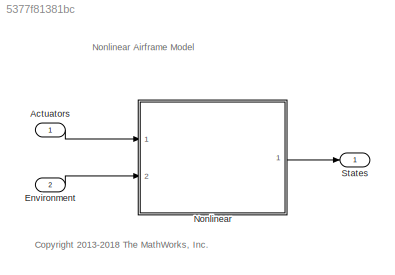
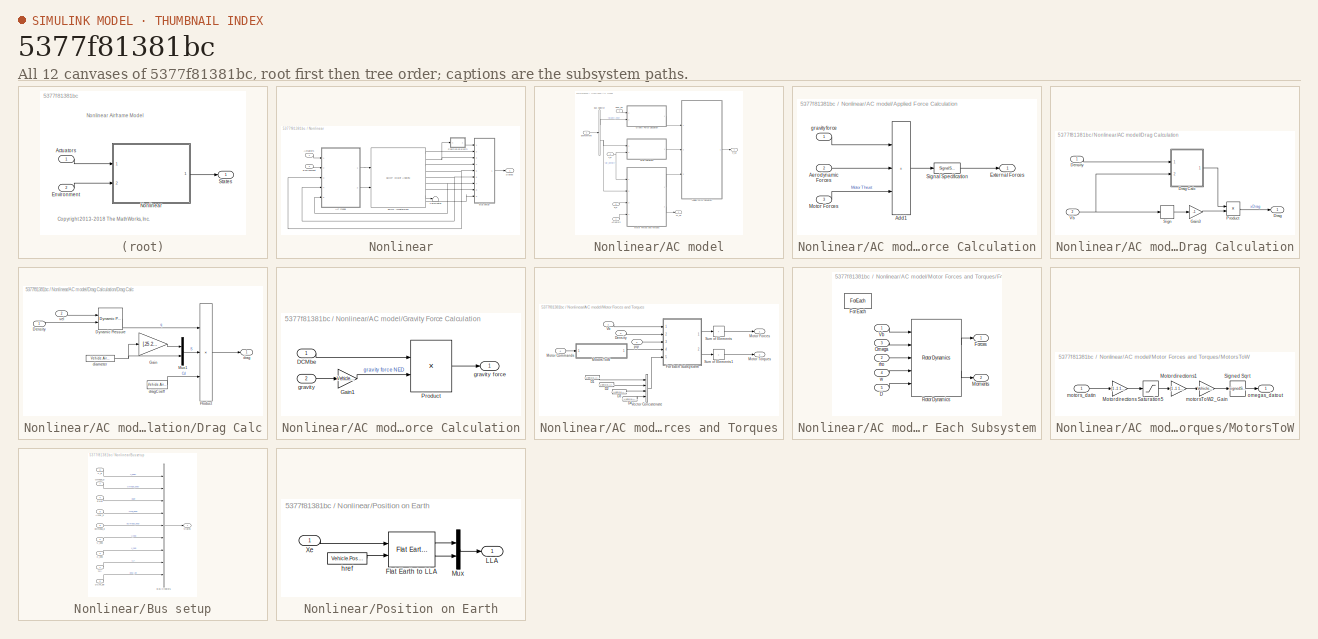
[diagram: thumbnail index - all 12 canvases of the model, root first then tree order]
MODEL slx_5377f81381bc
KIND model
CONFIG AbsTol = auto
CONFIG EnableMultiTasking = on
CONFIG FixedStep = Ts
CONFIG MaxStep = auto
CONFIG MinStep = auto
CONFIG RelTol = 1e-3
CONFIG SampleTimeConstraint = Unconstrained
CONFIG SolverName = ode3
CONFIG StartTime = 0
CONFIG StopTime = 10.0
BLOCK [Inport] Actuators
  OutDataTypeStr = single
  PortDimensions = [1 4]
  Unit = rpm
BLOCK [Inport] Environment
  BusOutputAsStruct = on
  OutDataTypeStr = Bus: EnvironmentBus
  Port = 2
BLOCK [SubSystem] Nonlinear
  Ports = [2, 1]
  RequestExecContextInheritance = off
  TreatAsAtomicUnit = on
BLOCK [Reference] Nonlinear/6DOF (Quaternion)  REF=shared6dof/6DOF (Euler Angles)
  Ports = [2, 9]
  SourceBlock = shared6dof/6DOF (Euler Angles)
  SourceProductBaseCode = AE,PW,DR,MT,UV,VE
  SourceType = 6DOF EoM (Body Axis)
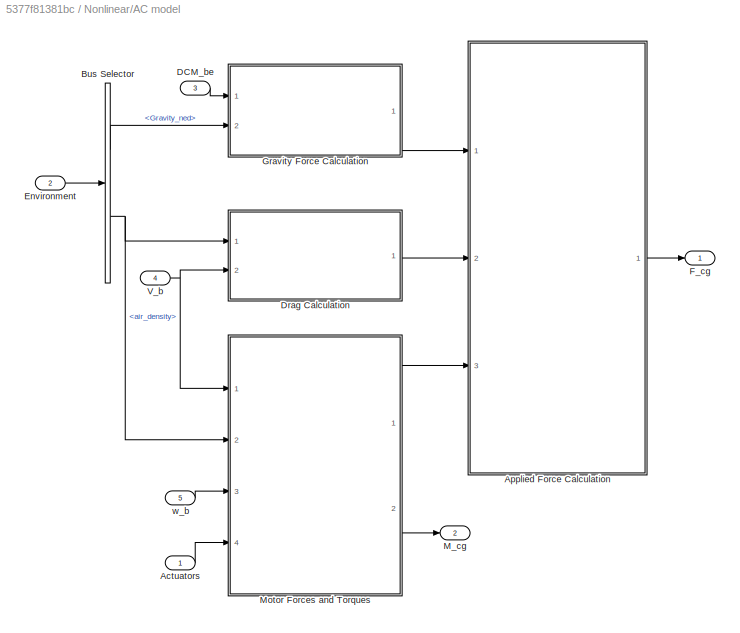
BLOCK [SubSystem] Nonlinear/AC model
  Ports = [5, 2]
  RequestExecContextInheritance = off
BLOCK [Inport] Nonlinear/AC model/Actuators
BLOCK [SubSystem] Nonlinear/AC model/Applied Force Calculation
  Ports = [3, 1]
  RequestExecContextInheritance = off
BLOCK [Sum] Nonlinear/AC model/Applied Force Calculation/Add1
  IconShape = rectangular
  Inputs = +++
  Ports = [3, 1]
BLOCK [Inport] Nonlinear/AC model/Applied Force Calculation/Aerodynamic Forces
  Port = 2
  Unit = N
BLOCK [Outport] Nonlinear/AC model/Applied Force Calculation/External Forces
  Unit = N
  VectorParamsAs1DForOutWhenUnconnected = off
BLOCK [Inport] Nonlinear/AC model/Applied Force Calculation/Motor Forces
  Port = 3
  Unit = N
BLOCK [SignalSpecification] Nonlinear/AC model/Applied Force Calculation/Signal Specification
  Dimensions = 3
BLOCK [Inport] Nonlinear/AC model/Applied Force Calculation/gravity force
  Unit = N
BLOCK [BusSelector] Nonlinear/AC model/Bus Selector
  OutputSignals = Gravity_ned,AtmosphereBus.air_density
  Ports = [1, 2]
BLOCK [Inport] Nonlinear/AC model/DCM_be
  Port = 3
BLOCK [SubSystem] Nonlinear/AC model/Drag Calculation
  Ports = [2, 1]
  RequestExecContextInheritance = off
BLOCK [Inport] Nonlinear/AC model/Drag Calculation/Density
  Unit = kg/m^3
BLOCK [Outport] Nonlinear/AC model/Drag Calculation/Drag
  Unit = N
  VectorParamsAs1DForOutWhenUnconnected = off
BLOCK [SubSystem] Nonlinear/AC model/Drag Calculation/Drag Calc
  Ports = [2, 1]
  RequestExecContextInheritance = off
BLOCK [Inport] Nonlinear/AC model/Drag Calculation/Drag Calc/Density
  Unit = kg/m^3
BLOCK [Reference] Nonlinear/AC model/Drag Calculation/Drag Calc/Dynamic Pressure  REF=aerolibasang/Dynamic Pressure
  Ports = [2, 1]
  SourceBlock = aerolibasang/Dynamic Pressure
  SourceProductBaseCode = AE
  SourceType = Dynamic Pressure
BLOCK [Gain] Nonlinear/AC model/Drag Calculation/Drag Calc/Gain
  Gain = [.25 .25]
BLOCK [Mux] Nonlinear/AC model/Drag Calculation/Drag Calc/Mux1
  DisplayOption = bar
  Inputs = 2
  Ports = [2, 1]
BLOCK [Product] Nonlinear/AC model/Drag Calculation/Drag Calc/Product
  Inputs = 3
  Ports = [3, 1]
  RndMeth = Zero
BLOCK [Constant] Nonlinear/AC model/Drag Calculation/Drag Calc/diameter
  SampleTime = 0
  Value = Vehicle.Airframe.diameter
BLOCK [Outport] Nonlinear/AC model/Drag Calculation/Drag Calc/drag
  Unit = N
  VectorParamsAs1DForOutWhenUnconnected = off
BLOCK [Constant] Nonlinear/AC model/Drag Calculation/Drag Calc/dragCoeff
  SampleTime = 0
  Value = Vehicle.Airframe.Cdx
BLOCK [Inport] Nonlinear/AC model/Drag Calculation/Drag Calc/vel
  Port = 2
  Unit = m/s
BLOCK [Gain] Nonlinear/AC model/Drag Calculation/Gain3
  Gain = -1
BLOCK [Product] Nonlinear/AC model/Drag Calculation/Product
  Ports = [2, 1]
  RndMeth = Zero
BLOCK [Signum] Nonlinear/AC model/Drag Calculation/Sign
  ZeroCross = off
BLOCK [Inport] Nonlinear/AC model/Drag Calculation/Vb
  Port = 2
  Unit = m/second
BLOCK [Inport] Nonlinear/AC model/Environment
  Port = 2
BLOCK [Outport] Nonlinear/AC model/F_cg
  Unit = N
  VectorParamsAs1DForOutWhenUnconnected = off
BLOCK [SubSystem] Nonlinear/AC model/Gravity Force Calculation
  Ports = [2, 1]
  RequestExecContextInheritance = off
BLOCK [Inport] Nonlinear/AC model/Gravity Force Calculation/DCMbe
BLOCK [Gain] Nonlinear/AC model/Gravity Force Calculation/Gain1
  Gain = Vehicle.Airframe.mass
BLOCK [Product] Nonlinear/AC model/Gravity Force Calculation/Product
  Multiplication = Matrix(*)
  Ports = [2, 1]
BLOCK [Inport] Nonlinear/AC model/Gravity Force Calculation/gravity
  Port = 2
  Unit = m/s^2
BLOCK [Outport] Nonlinear/AC model/Gravity Force Calculation/gravity force
  Unit = N
  VectorParamsAs1DForOutWhenUnconnected = off
BLOCK [Outport] Nonlinear/AC model/M_cg
  Port = 2
  Unit = N*m
  VectorParamsAs1DForOutWhenUnconnected = off
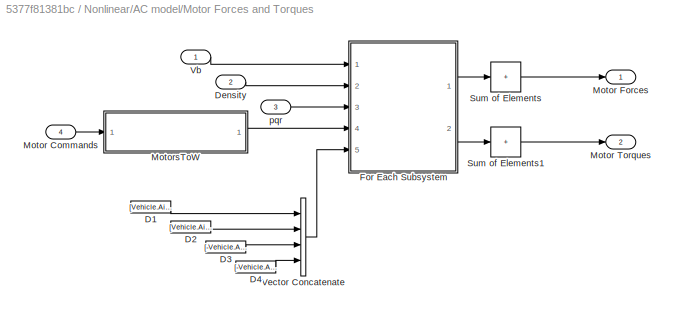
BLOCK [SubSystem] Nonlinear/AC model/Motor Forces and Torques
  Ports = [4, 2]
  RequestExecContextInheritance = off
BLOCK [Constant] Nonlinear/AC model/Motor Forces and Torques/D1
  Value = [Vehicle.Airframe.xy -Vehicle.Airframe.xy Vehicle.Airframe.h]
BLOCK [Constant] Nonlinear/AC model/Motor Forces and Torques/D2
  Value = [Vehicle.Airframe.xy Vehicle.Airframe.xy Vehicle.Airframe.h]
BLOCK [Constant] Nonlinear/AC model/Motor Forces and Torques/D3
  Value = [-Vehicle.Airframe.xy Vehicle.Airframe.xy Vehicle.Airframe.h]
BLOCK [Constant] Nonlinear/AC model/Motor Forces and Torques/D4
  Value = [-Vehicle.Airframe.xy -Vehicle.Airframe.xy Vehicle.Airframe.h]
BLOCK [Inport] Nonlinear/AC model/Motor Forces and Torques/Density
  Port = 2
BLOCK [SubSystem] Nonlinear/AC model/Motor Forces and Torques/For Each Subsystem
  Ports = [5, 2]
  RequestExecContextInheritance = off
  TreatAsAtomicUnit = on
BLOCK [Inport] Nonlinear/AC model/Motor Forces and Torques/For Each Subsystem/D
  Partition = on
  PartitionDimension = 2
  PartitionOffset = 0
  PartitionWidth = 1
  Port = 5
BLOCK [ForEach] Nonlinear/AC model/Motor Forces and Torques/For Each Subsystem/For Each
  DisableCoverage = on
  Ports = []
BLOCK [Outport] Nonlinear/AC model/Motor Forces and Torques/For Each Subsystem/Forces
  ConcatenationDimension = 2
  VectorParamsAs1DForOutWhenUnconnected = off
BLOCK [Outport] Nonlinear/AC model/Motor Forces and Torques/For Each Subsystem/Moments
  ConcatenationDimension = 2
  Port = 2
  VectorParamsAs1DForOutWhenUnconnected = off
BLOCK [Inport] Nonlinear/AC model/Motor Forces and Torques/For Each Subsystem/Omega
  Port = 3
BLOCK [Reference] Nonlinear/AC model/Motor Forces and Torques/For Each Subsystem/Rotor Dynamics  REF=dynamicsLibrary/Rotor Dynamics
  Ports = [5, 2]
  SourceBlock = dynamicsLibrary/Rotor Dynamics
BLOCK [Inport] Nonlinear/AC model/Motor Forces and Torques/For Each Subsystem/Vb
  PortDimensions = 3
BLOCK [Inport] Nonlinear/AC model/Motor Forces and Torques/For Each Subsystem/rho
  Port = 2
  PortDimensions = 1
BLOCK [Inport] Nonlinear/AC model/Motor Forces and Torques/For Each Subsystem/w
  Partition = on
  PartitionDimension = 2
  PartitionOffset = 0
  PartitionWidth = 1
  Port = 4
BLOCK [Inport] Nonlinear/AC model/Motor Forces and Torques/Motor Commands
  Port = 4
BLOCK [Outport] Nonlinear/AC model/Motor Forces and Torques/Motor Forces
  Unit = N
  VectorParamsAs1DForOutWhenUnconnected = off
BLOCK [Outport] Nonlinear/AC model/Motor Forces and Torques/Motor Torques
  Port = 2
  Unit = N*m
  VectorParamsAs1DForOutWhenUnconnected = off
BLOCK [SubSystem] Nonlinear/AC model/Motor Forces and Torques/MotorsToW
  Ports = [1, 1]
  RequestExecContextInheritance = off
BLOCK [Gain] Nonlinear/AC model/Motor Forces and Torques/MotorsToW/Motordirections
  Gain = [1 -1 1 -1]
  OutDataTypeStr = Inherit: Inherit via back propagation
  ParamDataTypeStr = single
  SaturateOnIntegerOverflow = on
BLOCK [Gain] Nonlinear/AC model/Motor Forces and Torques/MotorsToW/Motordirections1
  Gain = [1 -1 1 -1]
  OutDataTypeStr = Inherit: Inherit via back propagation
  ParamDataTypeStr = single
  SaturateOnIntegerOverflow = on
BLOCK [Saturate] Nonlinear/AC model/Motor Forces and Torques/MotorsToW/Saturation5
  LowerLimit = Vehicle.Motor.minLimit
  OutDataTypeStr = Inherit: Inherit via back propagation
  UpperLimit = Vehicle.Motor.maxLimit
BLOCK [Sqrt] Nonlinear/AC model/Motor Forces and Torques/MotorsToW/Signed Sqrt
  Operator = signedSqrt
  OutDataTypeStr = Inherit: Inherit via back propagation
BLOCK [Gain] Nonlinear/AC model/Motor Forces and Torques/MotorsToW/motorsToW2_Gain
  Gain = Vehicle.Motor.commandToW2Gain
  OutDataTypeStr = Inherit: Inherit via back propagation
  ParamDataTypeStr = single
  SaturateOnIntegerOverflow = on
BLOCK [Inport] Nonlinear/AC model/Motor Forces and Torques/MotorsToW/motors_datin
BLOCK [Outport] Nonlinear/AC model/Motor Forces and Torques/MotorsToW/omegas_datout
  VectorParamsAs1DForOutWhenUnconnected = off
BLOCK [Sum] Nonlinear/AC model/Motor Forces and Torques/Sum of Elements
  CollapseDim = 2
  CollapseMode = Specified dimension
  IconShape = rectangular
  Inputs = +
  Ports = [1, 1]
BLOCK [Sum] Nonlinear/AC model/Motor Forces and Torques/Sum of Elements1
  CollapseDim = 2
  CollapseMode = Specified dimension
  IconShape = rectangular
  Inputs = +
  Ports = [1, 1]
BLOCK [Inport] Nonlinear/AC model/Motor Forces and Torques/Vb
BLOCK [Concatenate] Nonlinear/AC model/Motor Forces and Torques/Vector Concatenate
  ConcatenateDimension = 2
  Mode = Multidimensional array
  NumInputs = 4
  Ports = [4, 1]
BLOCK [Inport] Nonlinear/AC model/Motor Forces and Torques/pqr
  Port = 3
BLOCK [Inport] Nonlinear/AC model/V_b
  Port = 4
  Unit = m/s
BLOCK [Inport] Nonlinear/AC model/w_b
  Port = 5
  Unit = rad/s
BLOCK [Inport] Nonlinear/Actuators
BLOCK [SubSystem] Nonlinear/Bus setup
  Ports = [9, 1]
  RequestExecContextInheritance = off
BLOCK [Inport] Nonlinear/Bus setup/Accel_b
  Port = 9
  PortDimensions = 3
  Unit = m/s^2
BLOCK [BusCreator] Nonlinear/Bus setup/Bus Creator5
  DisplayOption = bar
  InheritFromInputs = on
  Inputs = 9
  NonVirtualBus = on
  OutDataTypeStr = Bus: StatesBus
  Ports = [9, 1]
BLOCK [Inport] Nonlinear/Bus setup/DCM_be
  Port = 5
  PortDimensions = [3 3]
BLOCK [Inport] Nonlinear/Bus setup/Euler
  Port = 4
  PortDimensions = 3
  Unit = rad
BLOCK [Inport] Nonlinear/Bus setup/LLA
  PortDimensions = 3
BLOCK [Inport] Nonlinear/Bus setup/Omega_b
  Port = 7
  PortDimensions = 3
  Unit = rad/s
BLOCK [Outport] Nonlinear/Bus setup/States
  VectorParamsAs1DForOutWhenUnconnected = off
BLOCK [Inport] Nonlinear/Bus setup/V_b
  Port = 6
  PortDimensions = 3
  Unit = m/s
BLOCK [Inport] Nonlinear/Bus setup/V_ned
  Port = 2
  PortDimensions = 3
  Unit = m/second
BLOCK [Inport] Nonlinear/Bus setup/X_ned
  Port = 3
  PortDimensions = 3
  Unit = m
BLOCK [Inport] Nonlinear/Bus setup/dOmega_b
  Port = 8
  PortDimensions = 3
  Unit = rad/s^2
BLOCK [Inport] Nonlinear/Environment
  Port = 2
BLOCK [SubSystem] Nonlinear/Position on Earth
  NameLocation = top
  Ports = [1, 1]
  Priority = 1
  RequestExecContextInheritance = off
  TreatAsAtomicUnit = on
BLOCK [Reference] Nonlinear/Position on Earth/Flat Earth to LLA  REF=aerolibtransform2/Flat Earth to LLA
  Ports = [2, 2]
  SourceBlock = aerolibtransform2/Flat Earth to LLA
  SourceProductBaseCode = AE
  SourceType = Flat Earth to LLA
BLOCK [Outport] Nonlinear/Position on Earth/LLA
  VectorParamsAs1DForOutWhenUnconnected = off
BLOCK [Mux] Nonlinear/Position on Earth/Mux
  DisplayOption = bar
  Inputs = 2
  Ports = [2, 1]
BLOCK [Inport] Nonlinear/Position on Earth/Xe
  Unit = m
BLOCK [Constant] Nonlinear/Position on Earth/href
  Value = Vehicle.PositionOnEarth.href
BLOCK [Outport] Nonlinear/States
  VectorParamsAs1DForOutWhenUnconnected = off
BLOCK [Terminator] Nonlinear/Terminator
BLOCK [Outport] States
  BusOutputAsStruct = on
  OutDataTypeStr = Bus: StatesBus
  VectorParamsAs1DForOutWhenUnconnected = off
ANNOTATION (root): <copyright redacted>
ANNOTATION (root): Nonlinear Airframe Model
LINE Actuators:1 -> Nonlinear:1
LINE Environment:1 -> Nonlinear:2
LINE Nonlinear/6DOF (Quaternion):1 -> Nonlinear/Bus setup:2
NET Nonlinear/6DOF (Quaternion):2 -> Nonlinear/Bus setup:3, Nonlinear/Position on Earth:1
LINE Nonlinear/6DOF (Quaternion):3 -> Nonlinear/Bus setup:4
NET Nonlinear/6DOF (Quaternion):4 -> Nonlinear/AC model:3, Nonlinear/Bus setup:5
NET Nonlinear/6DOF (Quaternion):5 -> Nonlinear/AC model:4, Nonlinear/Bus setup:6
NET Nonlinear/6DOF (Quaternion):6 -> Nonlinear/AC model:5, Nonlinear/Bus setup:7
LINE Nonlinear/6DOF (Quaternion):7 -> Nonlinear/Bus setup:8
LINE Nonlinear/6DOF (Quaternion):8 -> Nonlinear/Terminator:1
LINE Nonlinear/6DOF (Quaternion):9 -> Nonlinear/Bus setup:9
LINE Nonlinear/AC model/Actuators:1 -> Nonlinear/AC model/Motor Forces and Torques:4
LINE Nonlinear/AC model/Applied Force Calculation/Add1:1 -> Nonlinear/AC model/Applied Force Calculation/Signal Specification:1
LINE Nonlinear/AC model/Applied Force Calculation/Aerodynamic Forces:1 -> Nonlinear/AC model/Applied Force Calculation/Add1:2
LINE Nonlinear/AC model/Applied Force Calculation/Motor Forces:1 -> Nonlinear/AC model/Applied Force Calculation/Add1:3
LINE Nonlinear/AC model/Applied Force Calculation/Signal Specification:1 -> Nonlinear/AC model/Applied Force Calculation/External Forces:1
LINE Nonlinear/AC model/Applied Force Calculation/gravity force:1 -> Nonlinear/AC model/Applied Force Calculation/Add1:1
LINE Nonlinear/AC model/Applied Force Calculation:1 -> Nonlinear/AC model/F_cg:1
LINE Nonlinear/AC model/Bus Selector:1 -> Nonlinear/AC model/Gravity Force Calculation:2
NET Nonlinear/AC model/Bus Selector:2 -> Nonlinear/AC model/Drag Calculation:1, Nonlinear/AC model/Motor Forces and Torques:2
LINE Nonlinear/AC model/DCM_be:1 -> Nonlinear/AC model/Gravity Force Calculation:1
LINE Nonlinear/AC model/Drag Calculation/Density:1 -> Nonlinear/AC model/Drag Calculation/Drag Calc:1
LINE Nonlinear/AC model/Drag Calculation/Drag Calc/Density:1 -> Nonlinear/AC model/Drag Calculation/Drag Calc/Dynamic Pressure:2
LINE Nonlinear/AC model/Drag Calculation/Drag Calc/Dynamic Pressure:1 -> Nonlinear/AC model/Drag Calculation/Drag Calc/Product:1
LINE Nonlinear/AC model/Drag Calculation/Drag Calc/Gain:1 -> Nonlinear/AC model/Drag Calculation/Drag Calc/Mux1:1
LINE Nonlinear/AC model/Drag Calculation/Drag Calc/Mux1:1 -> Nonlinear/AC model/Drag Calculation/Drag Calc/Product:2
LINE Nonlinear/AC model/Drag Calculation/Drag Calc/Product:1 -> Nonlinear/AC model/Drag Calculation/Drag Calc/drag:1
NET Nonlinear/AC model/Drag Calculation/Drag Calc/diameter:1 -> Nonlinear/AC model/Drag Calculation/Drag Calc/Gain:1, Nonlinear/AC model/Drag Calculation/Drag Calc/Mux1:2
LINE Nonlinear/AC model/Drag Calculation/Drag Calc/dragCoeff:1 -> Nonlinear/AC model/Drag Calculation/Drag Calc/Product:3
LINE Nonlinear/AC model/Drag Calculation/Drag Calc/vel:1 -> Nonlinear/AC model/Drag Calculation/Drag Calc/Dynamic Pressure:1
LINE Nonlinear/AC model/Drag Calculation/Drag Calc:1 -> Nonlinear/AC model/Drag Calculation/Product:1
LINE Nonlinear/AC model/Drag Calculation/Gain3:1 -> Nonlinear/AC model/Drag Calculation/Product:2
LINE Nonlinear/AC model/Drag Calculation/Product:1 -> Nonlinear/AC model/Drag Calculation/Drag:1
LINE Nonlinear/AC model/Drag Calculation/Sign:1 -> Nonlinear/AC model/Drag Calculation/Gain3:1
NET Nonlinear/AC model/Drag Calculation/Vb:1 -> Nonlinear/AC model/Drag Calculation/Drag Calc:2, Nonlinear/AC model/Drag Calculation/Sign:1
LINE Nonlinear/AC model/Drag Calculation:1 -> Nonlinear/AC model/Applied Force Calculation:2
LINE Nonlinear/AC model/Environment:1 -> Nonlinear/AC model/Bus Selector:1
LINE Nonlinear/AC model/Gravity Force Calculation/DCMbe:1 -> Nonlinear/AC model/Gravity Force Calculation/Product:1
LINE Nonlinear/AC model/Gravity Force Calculation/Gain1:1 -> Nonlinear/AC model/Gravity Force Calculation/Product:2
LINE Nonlinear/AC model/Gravity Force Calculation/Product:1 -> Nonlinear/AC model/Gravity Force Calculation/gravity force:1
LINE Nonlinear/AC model/Gravity Force Calculation/gravity:1 -> Nonlinear/AC model/Gravity Force Calculation/Gain1:1
LINE Nonlinear/AC model/Gravity Force Calculation:1 -> Nonlinear/AC model/Applied Force Calculation:1
LINE Nonlinear/AC model/Motor Forces and Torques/D1:1 -> Nonlinear/AC model/Motor Forces and Torques/Vector Concatenate:1
LINE Nonlinear/AC model/Motor Forces and Torques/D2:1 -> Nonlinear/AC model/Motor Forces and Torques/Vector Concatenate:2
LINE Nonlinear/AC model/Motor Forces and Torques/D3:1 -> Nonlinear/AC model/Motor Forces and Torques/Vector Concatenate:3
LINE Nonlinear/AC model/Motor Forces and Torques/D4:1 -> Nonlinear/AC model/Motor Forces and Torques/Vector Concatenate:4
LINE Nonlinear/AC model/Motor Forces and Torques/Density:1 -> Nonlinear/AC model/Motor Forces and Torques/For Each Subsystem:2
LINE Nonlinear/AC model/Motor Forces and Torques/For Each Subsystem/D:1 -> Nonlinear/AC model/Motor Forces and Torques/For Each Subsystem/Rotor Dynamics:5
LINE Nonlinear/AC model/Motor Forces and Torques/For Each Subsystem/Omega:1 -> Nonlinear/AC model/Motor Forces and Torques/For Each Subsystem/Rotor Dynamics:2
LINE Nonlinear/AC model/Motor Forces and Torques/For Each Subsystem/Rotor Dynamics:1 -> Nonlinear/AC model/Motor Forces and Torques/For Each Subsystem/Forces:1
LINE Nonlinear/AC model/Motor Forces and Torques/For Each Subsystem/Rotor Dynamics:2 -> Nonlinear/AC model/Motor Forces and Torques/For Each Subsystem/Moments:1
LINE Nonlinear/AC model/Motor Forces and Torques/For Each Subsystem/Vb:1 -> Nonlinear/AC model/Motor Forces and Torques/For Each Subsystem/Rotor Dynamics:1
LINE Nonlinear/AC model/Motor Forces and Torques/For Each Subsystem/rho:1 -> Nonlinear/AC model/Motor Forces and Torques/For Each Subsystem/Rotor Dynamics:3
LINE Nonlinear/AC model/Motor Forces and Torques/For Each Subsystem/w:1 -> Nonlinear/AC model/Motor Forces and Torques/For Each Subsystem/Rotor Dynamics:4
LINE Nonlinear/AC model/Motor Forces and Torques/For Each Subsystem:1 -> Nonlinear/AC model/Motor Forces and Torques/Sum of Elements:1
LINE Nonlinear/AC model/Motor Forces and Torques/For Each Subsystem:2 -> Nonlinear/AC model/Motor Forces and Torques/Sum of Elements1:1
LINE Nonlinear/AC model/Motor Forces and Torques/Motor Commands:1 -> Nonlinear/AC model/Motor Forces and Torques/MotorsToW:1
LINE Nonlinear/AC model/Motor Forces and Torques/MotorsToW/Motordirections1:1 -> Nonlinear/AC model/Motor Forces and Torques/MotorsToW/motorsToW2_Gain:1
LINE Nonlinear/AC model/Motor Forces and Torques/MotorsToW/Motordirections:1 -> Nonlinear/AC model/Motor Forces and Torques/MotorsToW/Saturation5:1
LINE Nonlinear/AC model/Motor Forces and Torques/MotorsToW/Saturation5:1 -> Nonlinear/AC model/Motor Forces and Torques/MotorsToW/Motordirections1:1
LINE Nonlinear/AC model/Motor Forces and Torques/MotorsToW/Signed Sqrt:1 -> Nonlinear/AC model/Motor Forces and Torques/MotorsToW/omegas_datout:1
LINE Nonlinear/AC model/Motor Forces and Torques/MotorsToW/motorsToW2_Gain:1 -> Nonlinear/AC model/Motor Forces and Torques/MotorsToW/Signed Sqrt:1
LINE Nonlinear/AC model/Motor Forces and Torques/MotorsToW/motors_datin:1 -> Nonlinear/AC model/Motor Forces and Torques/MotorsToW/Motordirections:1
LINE Nonlinear/AC model/Motor Forces and Torques/MotorsToW:1 -> Nonlinear/AC model/Motor Forces and Torques/For Each Subsystem:4
LINE Nonlinear/AC model/Motor Forces and Torques/Sum of Elements1:1 -> Nonlinear/AC model/Motor Forces and Torques/Motor Torques:1
LINE Nonlinear/AC model/Motor Forces and Torques/Sum of Elements:1 -> Nonlinear/AC model/Motor Forces and Torques/Motor Forces:1
LINE Nonlinear/AC model/Motor Forces and Torques/Vb:1 -> Nonlinear/AC model/Motor Forces and Torques/For Each Subsystem:1
LINE Nonlinear/AC model/Motor Forces and Torques/Vector Concatenate:1 -> Nonlinear/AC model/Motor Forces and Torques/For Each Subsystem:5
LINE Nonlinear/AC model/Motor Forces and Torques/pqr:1 -> Nonlinear/AC model/Motor Forces and Torques/For Each Subsystem:3
LINE Nonlinear/AC model/Motor Forces and Torques:1 -> Nonlinear/AC model/Applied Force Calculation:3
LINE Nonlinear/AC model/Motor Forces and Torques:2 -> Nonlinear/AC model/M_cg:1
NET Nonlinear/AC model/V_b:1 -> Nonlinear/AC model/Drag Calculation:2, Nonlinear/AC model/Motor Forces and Torques:1
LINE Nonlinear/AC model/w_b:1 -> Nonlinear/AC model/Motor Forces and Torques:3
LINE Nonlinear/AC model:1 -> Nonlinear/6DOF (Quaternion):1
LINE Nonlinear/AC model:2 -> Nonlinear/6DOF (Quaternion):2
LINE Nonlinear/Actuators:1 -> Nonlinear/AC model:1
LINE Nonlinear/Bus setup/Accel_b:1 -> Nonlinear/Bus setup/Bus Creator5:4
LINE Nonlinear/Bus setup/Bus Creator5:1 -> Nonlinear/Bus setup/States:1
LINE Nonlinear/Bus setup/DCM_be:1 -> Nonlinear/Bus setup/Bus Creator5:9
LINE Nonlinear/Bus setup/Euler:1 -> Nonlinear/Bus setup/Bus Creator5:3
LINE Nonlinear/Bus setup/LLA:1 -> Nonlinear/Bus setup/Bus Creator5:8
LINE Nonlinear/Bus setup/Omega_b:1 -> Nonlinear/Bus setup/Bus Creator5:2
LINE Nonlinear/Bus setup/V_b:1 -> Nonlinear/Bus setup/Bus Creator5:1
LINE Nonlinear/Bus setup/V_ned:1 -> Nonlinear/Bus setup/Bus Creator5:6
LINE Nonlinear/Bus setup/X_ned:1 -> Nonlinear/Bus setup/Bus Creator5:7
LINE Nonlinear/Bus setup/dOmega_b:1 -> Nonlinear/Bus setup/Bus Creator5:5
LINE Nonlinear/Bus setup:1 -> Nonlinear/States:1
LINE Nonlinear/Environment:1 -> Nonlinear/AC model:2
LINE Nonlinear/Position on Earth/Flat Earth to LLA:1 -> Nonlinear/Position on Earth/Mux:1
LINE Nonlinear/Position on Earth/Flat Earth to LLA:2 -> Nonlinear/Position on Earth/Mux:2
LINE Nonlinear/Position on Earth/Mux:1 -> Nonlinear/Position on Earth/LLA:1
LINE Nonlinear/Position on Earth/Xe:1 -> Nonlinear/Position on Earth/Flat Earth to LLA:1
LINE Nonlinear/Position on Earth/href:1 -> Nonlinear/Position on Earth/Flat Earth to LLA:2
LINE Nonlinear/Position on Earth:1 -> Nonlinear/Bus setup:1
LINE Nonlinear:1 -> States:1
note: NET lines group one-source signal fan-out (src -> all destinations, sorted); 1:1 wires keep LINE
